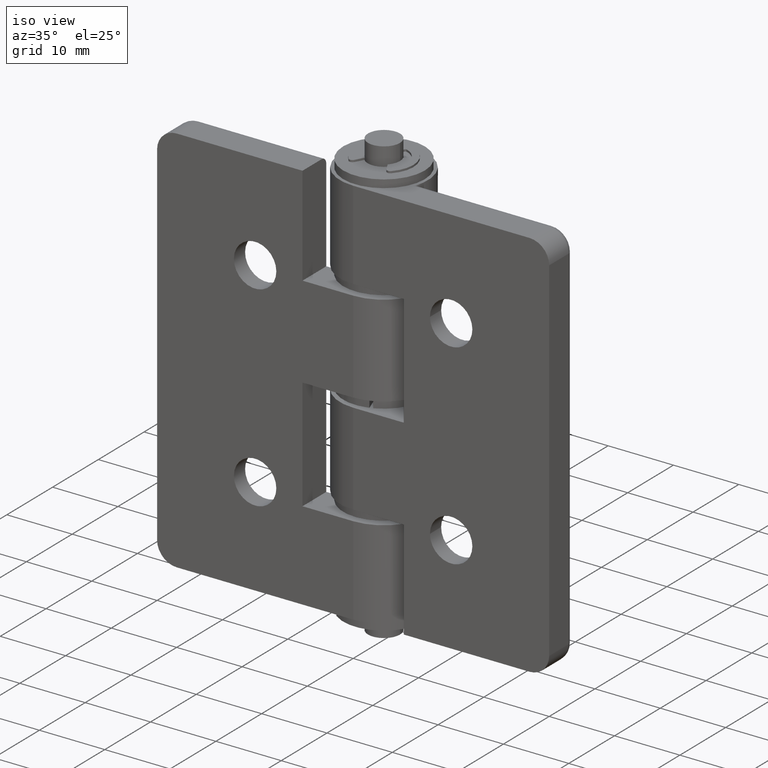
[diagram: clean part render]
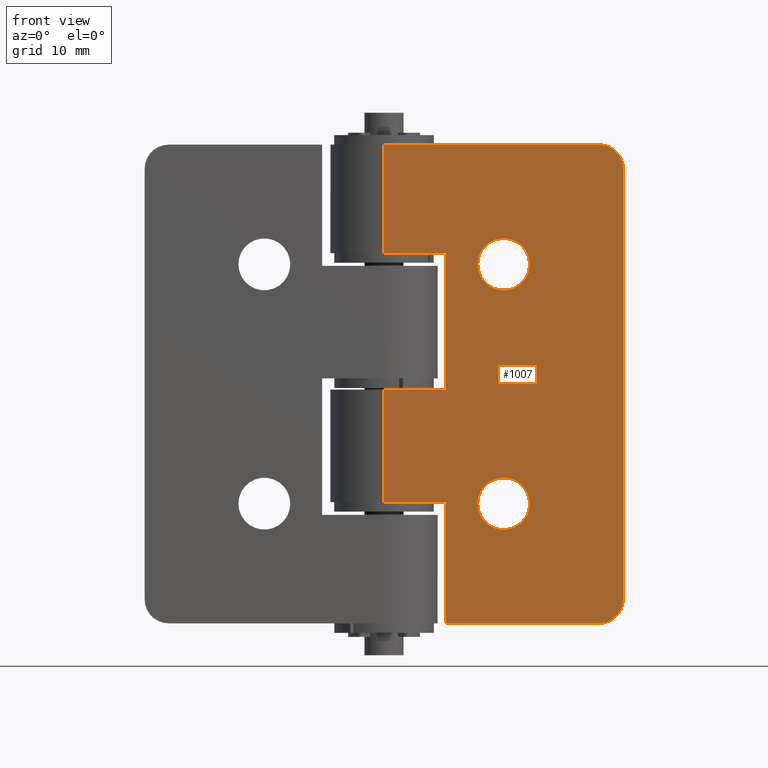
[diagram: tour spotlight — one face highlighted and labeled with its STEP entity id]
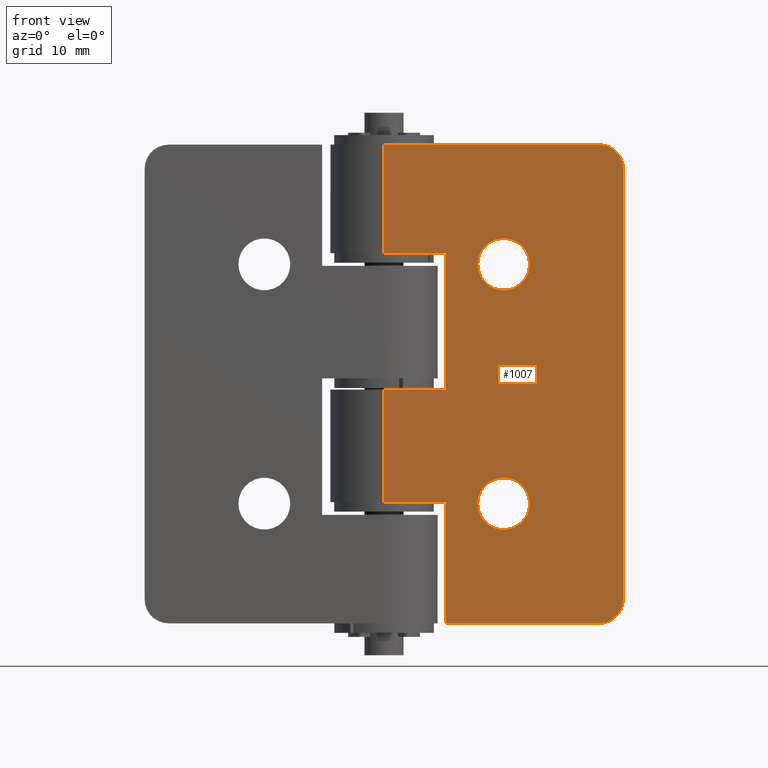
[diagram: tour spotlight — one face highlighted and labeled with its STEP entity id]
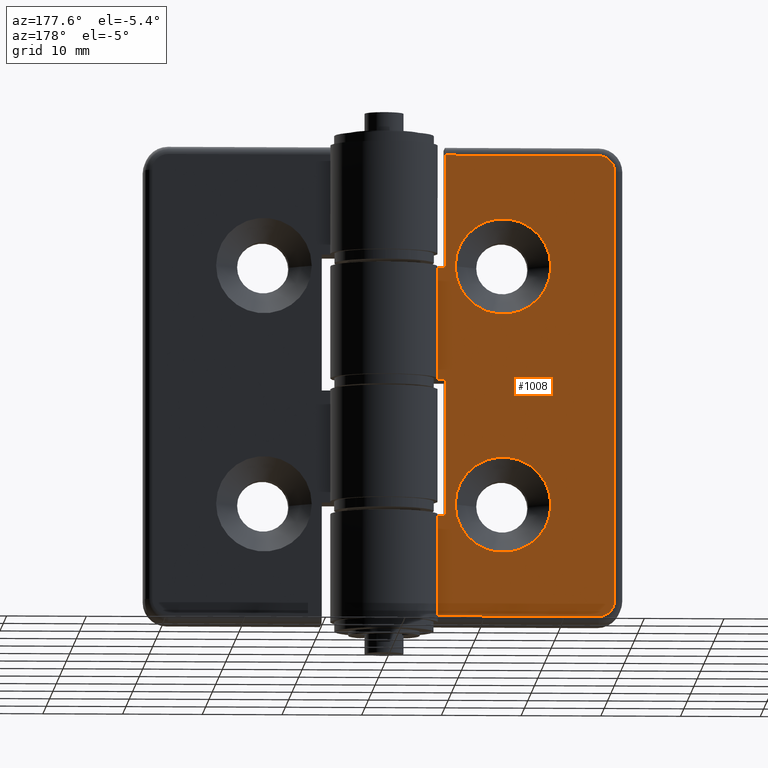
[diagram: tour spotlight — one face highlighted and labeled with its STEP entity id]
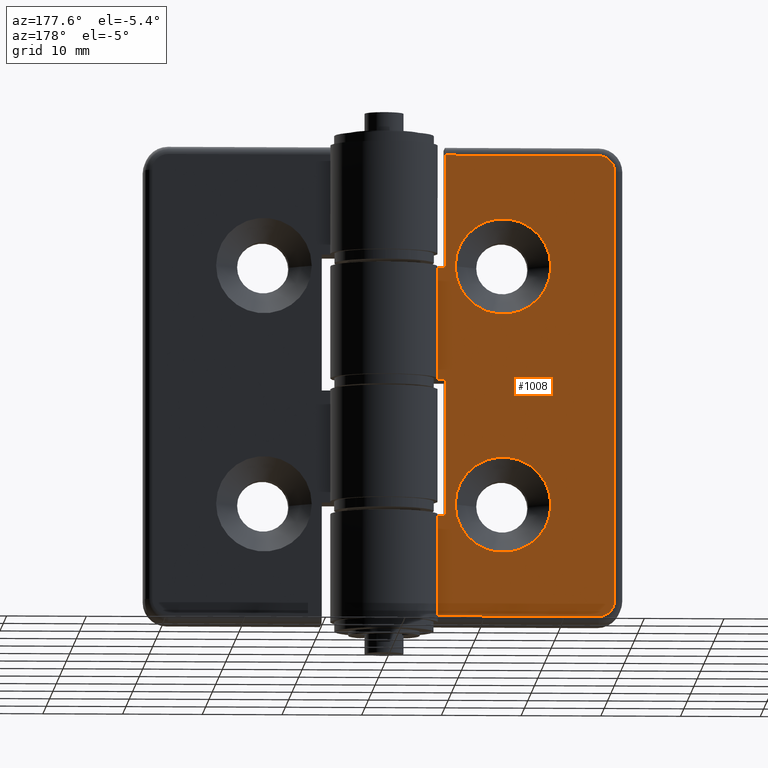
[diagram: tour spotlight — one face highlighted and labeled with its STEP entity id]
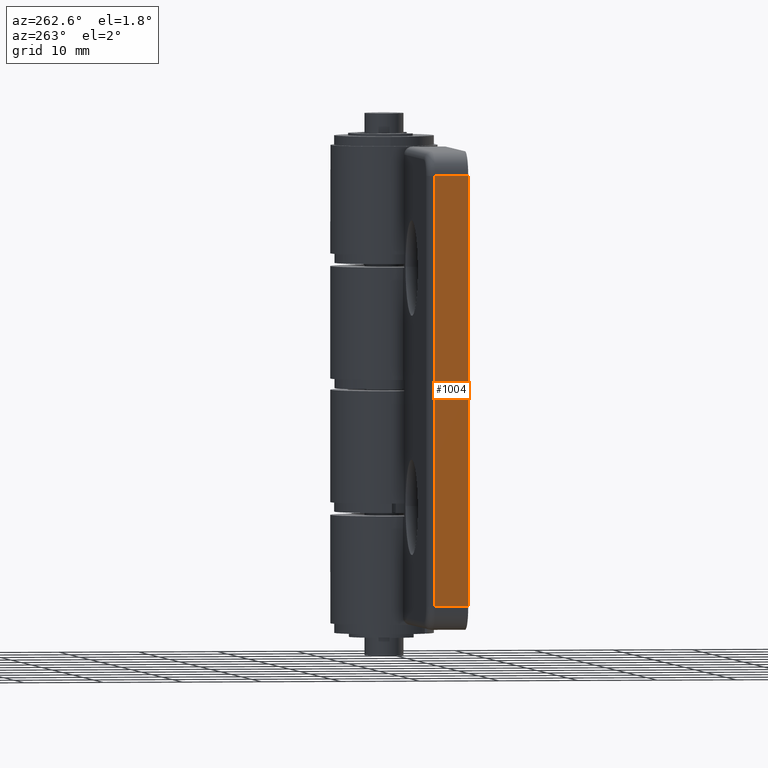
[diagram: tour spotlight — one face highlighted and labeled with its STEP entity id]
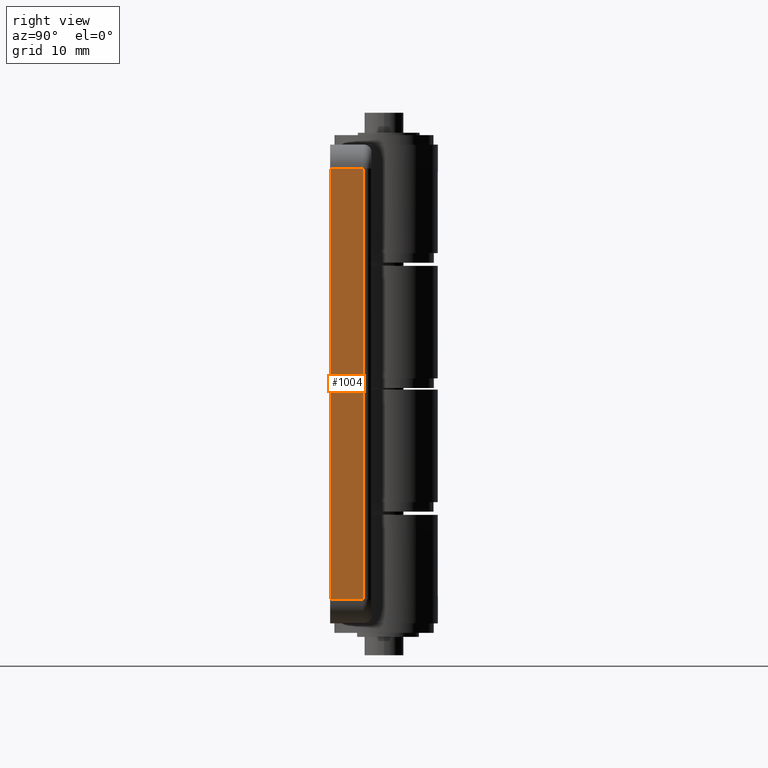
[diagram: tour spotlight — one face highlighted and labeled with its STEP entity id]
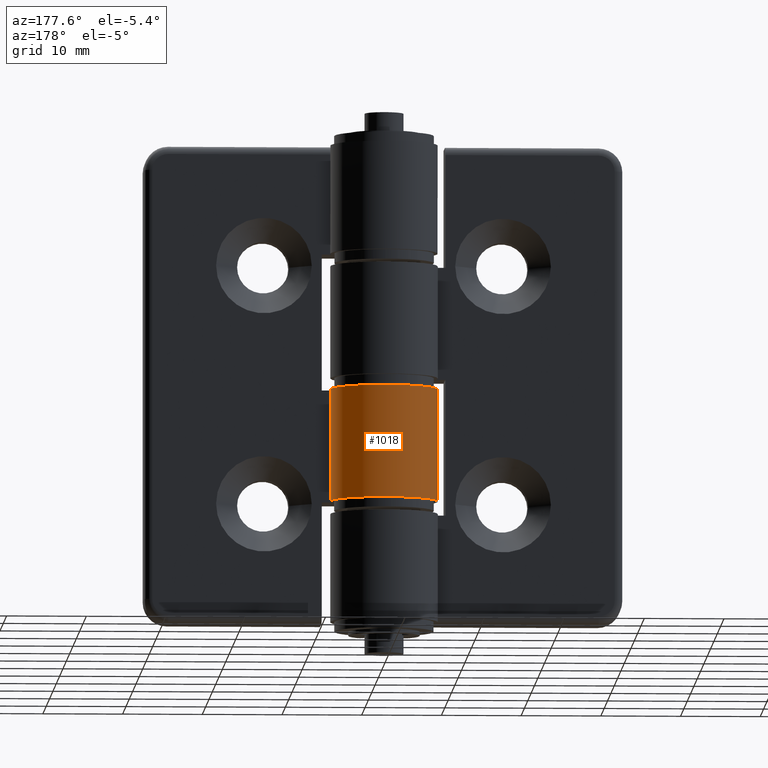
[diagram: tour spotlight — one face highlighted and labeled with its STEP entity id]
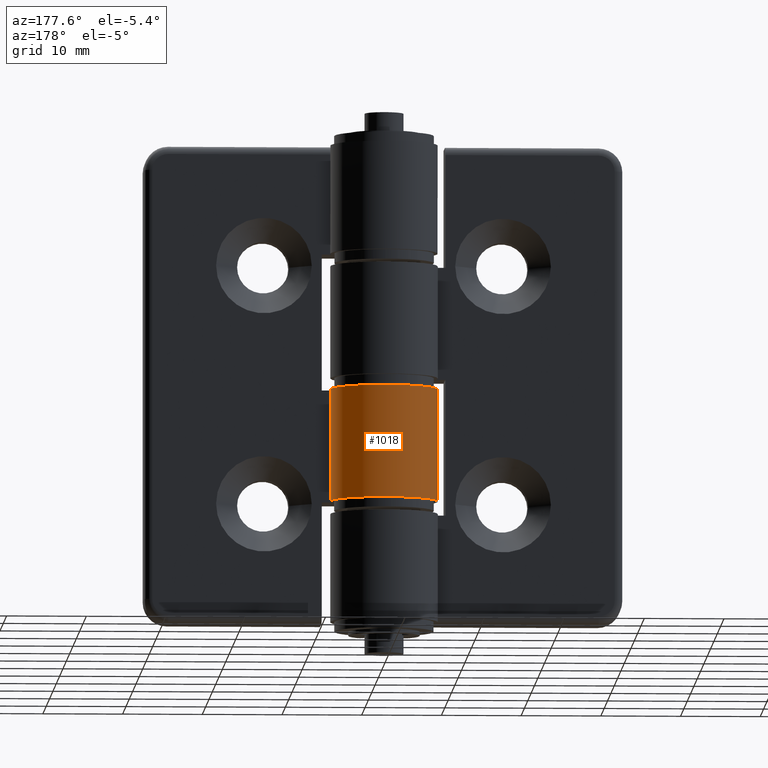
[diagram: tour spotlight — one face highlighted and labeled with its STEP entity id]
A machine part: a face-by-face anatomy tour. The part has 129 B-rep faces; the first image is the clean iso view, then the 8 largest visible faces are spotlighted one at a time (largest first), each with its STEP entity span.

Face 1 — front view, entity #1007. In plain terms, the highlighted planar face has unit normal (0, -1, 0).
Definition (entity closure, byte-faithful):
#74=FACE_BOUND('',#194,.T.);
#75=FACE_BOUND('',#195,.T.);
#96=PLANE('',#1086);
#132=FACE_OUTER_BOUND('',#193,.T.);
#193=EDGE_LOOP('',(#743,#744,#745,#746,#747,#748,#749,#750,#751,#752,#753,
#754));
#194=EDGE_LOOP('',(#755));
#195=EDGE_LOOP('',(#756));
#268=LINE('',#1592,#341);
#272=LINE('',#1599,#345);
#275=LINE('',#1607,#348);
#277=LINE('',#1615,#350);
#278=LINE('',#1620,#351);
#279=LINE('',#1622,#352);
#280=LINE('',#1624,#353);
#281=LINE('',#1626,#354);
#282=LINE('',#1628,#355);
#283=LINE('',#1629,#356);
#341=VECTOR('',#1237,15.2);
#345=VECTOR('',#1243,19.25);
#348=VECTOR('',#1252,54.);
#350=VECTOR('',#1262,27.);
#351=VECTOR('',#1267,13.6);
#352=VECTOR('',#1268,7.75000000000001);
#353=VECTOR('',#1269,17.1);
#354=VECTOR('',#1270,7.75000000000001);
#355=VECTOR('',#1271,14.1);
#356=VECTOR('',#1272,7.75);
#416=CIRCLE('',#1079,3.);
#417=CIRCLE('',#1082,3.);
#420=CIRCLE('',#1087,3.25);
#421=CIRCLE('',#1088,3.25);
#480=VERTEX_POINT('',#1589);
#481=VERTEX_POINT('',#1591);
#483=VERTEX_POINT('',#1597);
#484=VERTEX_POINT('',#1601);
#485=VERTEX_POINT('',#1605);
#486=VERTEX_POINT('',#1609);
#487=VERTEX_POINT('',#1613);
#489=VERTEX_POINT('',#1619);
#490=VERTEX_POINT('',#1621);
#491=VERTEX_POINT('',#1623);
#492=VERTEX_POINT('',#1625);
#493=VERTEX_POINT('',#1627);
#494=VERTEX_POINT('',#1630);
#495=VERTEX_POINT('',#1632);
#579=EDGE_CURVE('',#481,#480,#268,.T.);
#583=EDGE_CURVE('',#480,#483,#272,.T.);
#585=EDGE_CURVE('',#484,#483,#416,.T.);
#587=EDGE_CURVE('',#484,#485,#275,.T.);
#589=EDGE_CURVE('',#486,#485,#417,.T.);
#591=EDGE_CURVE('',#487,#486,#277,.T.);
#593=EDGE_CURVE('',#489,#487,#278,.T.);
#594=EDGE_CURVE('',#489,#490,#279,.T.);
#595=EDGE_CURVE('',#490,#491,#280,.T.);
#596=EDGE_CURVE('',#491,#492,#281,.T.);
#597=EDGE_CURVE('',#493,#492,#282,.T.);
#598=EDGE_CURVE('',#493,#481,#283,.T.);
#599=EDGE_CURVE('',#494,#494,#420,.T.);
#600=EDGE_CURVE('',#495,#495,#421,.T.);
#743=ORIENTED_EDGE('',*,*,#585,.F.);
#744=ORIENTED_EDGE('',*,*,#587,.T.);
#745=ORIENTED_EDGE('',*,*,#589,.F.);
#746=ORIENTED_EDGE('',*,*,#591,.F.);
#747=ORIENTED_EDGE('',*,*,#593,.F.);
#748=ORIENTED_EDGE('',*,*,#594,.T.);
#749=ORIENTED_EDGE('',*,*,#595,.T.);
#750=ORIENTED_EDGE('',*,*,#596,.T.);
#751=ORIENTED_EDGE('',*,*,#597,.F.);
#752=ORIENTED_EDGE('',*,*,#598,.T.);
#753=ORIENTED_EDGE('',*,*,#579,.T.);
#754=ORIENTED_EDGE('',*,*,#583,.T.);
#755=ORIENTED_EDGE('',*,*,#599,.T.);
#756=ORIENTED_EDGE('',*,*,#600,.T.);
#1007=ADVANCED_FACE('',(#132,#74,#75),#96,.T.);
#1079=AXIS2_PLACEMENT_3D('',#1603,#1247,#1248);
#1082=AXIS2_PLACEMENT_3D('',#1611,#1256,#1257);
#1086=AXIS2_PLACEMENT_3D('',#1618,#1265,#1266);
#1087=AXIS2_PLACEMENT_3D('',#1631,#1273,#1274);
#1088=AXIS2_PLACEMENT_3D('',#1633,#1275,#1276);
#1237=DIRECTION('',(2.92163953848725E-16,3.57797650907077E-32,1.));
#1243=DIRECTION('',(-1.,-1.22464679914735E-16,0.));
#1247=DIRECTION('center_axis',(-1.22464679914735E-16,1.,0.));
#1248=DIRECTION('ref_axis',(-0.707106781186547,0.,0.707106781186548));
#1252=DIRECTION('',(0.,0.,-1.));
#1256=DIRECTION('center_axis',(-1.22464679914735E-16,1.,0.));
#1257=DIRECTION('ref_axis',(-0.707106781186548,0.,-0.707106781186547));
#1262=DIRECTION('',(-1.,-1.22464679914735E-16,0.));
#1265=DIRECTION('center_axis',(1.22464679914735E-16,-1.,0.));
#1266=DIRECTION('ref_axis',(-1.,-1.22464679914735E-16,0.));
#1267=DIRECTION('',(0.,0.,-1.));
#1268=DIRECTION('',(-1.,-1.22464679914735E-16,0.));
#1269=DIRECTION('',(2.59701292309978E-16,3.18042356361846E-32,1.));
#1270=DIRECTION('',(1.,1.22464679914735E-16,0.));
#1271=DIRECTION('',(0.,0.,-1.));
#1272=DIRECTION('',(-1.,-1.22464679914735E-16,1.53134210293125E-16));
#1273=DIRECTION('center_axis',(-1.22464679914735E-16,1.,0.));
#1274=DIRECTION('ref_axis',(1.,2.22044604925031E-16,3.79071397121365E-16));
#1275=DIRECTION('center_axis',(-1.22464679914735E-16,1.,0.));
#1276=DIRECTION('ref_axis',(1.,2.22044604925031E-16,3.79071397121365E-16));
#1589=CARTESIAN_POINT('',(-7.75,-1.11022302462516E-15,2.06052571237087E-15));
#1591=CARTESIAN_POINT('',(-7.75,-1.11022302462516E-15,-15.2));
#1592=CARTESIAN_POINT('',(-7.75,-1.11022302462516E-15,-7.6));
#1597=CARTESIAN_POINT('',(-27.,-3.30654635769785E-15,0.));
#1599=CARTESIAN_POINT('',(0.,0.,0.));
#1601=CARTESIAN_POINT('',(-30.,-3.67394039744206E-15,-3.));
#1603=CARTESIAN_POINT('Origin',(-27.,0.,-3.));
#1605=CARTESIAN_POINT('',(-30.,-3.67394039744206E-15,-57.));
#1607=CARTESIAN_POINT('',(-30.,-3.67394039744206E-15,0.));
#1609=CARTESIAN_POINT('',(-27.,-3.30654635769785E-15,-60.));
#1611=CARTESIAN_POINT('Origin',(-27.,0.,-57.));
#1613=CARTESIAN_POINT('',(0.,0.,-60.));
#1615=CARTESIAN_POINT('',(0.,0.,-60.));
#1618=CARTESIAN_POINT('Origin',(0.,0.,0.));
#1619=CARTESIAN_POINT('',(2.46519032881566E-31,0.,-46.4));
#1620=CARTESIAN_POINT('',(2.46519032881566E-31,0.,0.));
#1621=CARTESIAN_POINT('',(-7.75000000000001,-1.11022302462516E-15,-46.4));
#1622=CARTESIAN_POINT('',(3.375,5.55111512312578E-16,-46.4));
#1623=CARTESIAN_POINT('',(-7.75000000000001,-1.11022302462516E-15,-29.3));
#1624=CARTESIAN_POINT('',(-7.75000000000001,-1.11022302462516E-15,-23.2));
#1625=CARTESIAN_POINT('',(2.46519032881566E-31,0.,-29.3));
#1626=CARTESIAN_POINT('',(-3.875,-5.55111512312578E-16,-29.3));
#1627=CARTESIAN_POINT('',(2.46519032881566E-31,0.,-15.2));
#1628=CARTESIAN_POINT('',(2.46519032881566E-31,0.,0.));
#1629=CARTESIAN_POINT('',(3.375,5.55111512312578E-16,-15.2));
#1630=CARTESIAN_POINT('',(-18.25,-7.21644966006352E-16,-15.));
#1631=CARTESIAN_POINT('Origin',(-15.,0.,-15.));
#1632=CARTESIAN_POINT('',(-18.25,-7.21644966006352E-16,-45.));
#1633=CARTESIAN_POINT('Origin',(-15.,0.,-45.));

Face 2 — front view, entity #1007. In plain terms, the highlighted planar face has unit normal (-0, -1, 0).
Definition (entity closure, byte-faithful):
#74=FACE_BOUND('',#194,.T.);
#75=FACE_BOUND('',#195,.T.);
#96=PLANE('',#1086);
#132=FACE_OUTER_BOUND('',#193,.T.);
#193=EDGE_LOOP('',(#743,#744,#745,#746,#747,#748,#749,#750,#751,#752,#753,
#754));
#194=EDGE_LOOP('',(#755));
#195=EDGE_LOOP('',(#756));
#268=LINE('',#1592,#341);
#272=LINE('',#1599,#345);
#275=LINE('',#1607,#348);
#277=LINE('',#1615,#350);
#278=LINE('',#1620,#351);
#279=LINE('',#1622,#352);
#280=LINE('',#1624,#353);
#281=LINE('',#1626,#354);
#282=LINE('',#1628,#355);
#283=LINE('',#1629,#356);
#341=VECTOR('',#1237,15.2);
#345=VECTOR('',#1243,19.25);
#348=VECTOR('',#1252,54.);
#350=VECTOR('',#1262,27.);
#351=VECTOR('',#1267,13.6);
#352=VECTOR('',#1268,7.75000000000001);
#353=VECTOR('',#1269,17.1);
#354=VECTOR('',#1270,7.75000000000001);
#355=VECTOR('',#1271,14.1);
#356=VECTOR('',#1272,7.75);
#416=CIRCLE('',#1079,3.);
#417=CIRCLE('',#1082,3.);
#420=CIRCLE('',#1087,3.25);
#421=CIRCLE('',#1088,3.25);
#480=VERTEX_POINT('',#1589);
#481=VERTEX_POINT('',#1591);
#483=VERTEX_POINT('',#1597);
#484=VERTEX_POINT('',#1601);
#485=VERTEX_POINT('',#1605);
#486=VERTEX_POINT('',#1609);
#487=VERTEX_POINT('',#1613);
#489=VERTEX_POINT('',#1619);
#490=VERTEX_POINT('',#1621);
#491=VERTEX_POINT('',#1623);
#492=VERTEX_POINT('',#1625);
#493=VERTEX_POINT('',#1627);
#494=VERTEX_POINT('',#1630);
#495=VERTEX_POINT('',#1632);
#579=EDGE_CURVE('',#481,#480,#268,.T.);
#583=EDGE_CURVE('',#480,#483,#272,.T.);
#585=EDGE_CURVE('',#484,#483,#416,.T.);
#587=EDGE_CURVE('',#484,#485,#275,.T.);
#589=EDGE_CURVE('',#486,#485,#417,.T.);
#591=EDGE_CURVE('',#487,#486,#277,.T.);
#593=EDGE_CURVE('',#489,#487,#278,.T.);
#594=EDGE_CURVE('',#489,#490,#279,.T.);
#595=EDGE_CURVE('',#490,#491,#280,.T.);
#596=EDGE_CURVE('',#491,#492,#281,.T.);
#597=EDGE_CURVE('',#493,#492,#282,.T.);
#598=EDGE_CURVE('',#493,#481,#283,.T.);
#599=EDGE_CURVE('',#494,#494,#420,.T.);
#600=EDGE_CURVE('',#495,#495,#421,.T.);
#743=ORIENTED_EDGE('',*,*,#585,.F.);
#744=ORIENTED_EDGE('',*,*,#587,.T.);
#745=ORIENTED_EDGE('',*,*,#589,.F.);
#746=ORIENTED_EDGE('',*,*,#591,.F.);
#747=ORIENTED_EDGE('',*,*,#593,.F.);
#748=ORIENTED_EDGE('',*,*,#594,.T.);
#749=ORIENTED_EDGE('',*,*,#595,.T.);
#750=ORIENTED_EDGE('',*,*,#596,.T.);
#751=ORIENTED_EDGE('',*,*,#597,.F.);
#752=ORIENTED_EDGE('',*,*,#598,.T.);
#753=ORIENTED_EDGE('',*,*,#579,.T.);
#754=ORIENTED_EDGE('',*,*,#583,.T.);
#755=ORIENTED_EDGE('',*,*,#599,.T.);
#756=ORIENTED_EDGE('',*,*,#600,.T.);
#1007=ADVANCED_FACE('',(#132,#74,#75),#96,.T.);
#1079=AXIS2_PLACEMENT_3D('',#1603,#1247,#1248);
#1082=AXIS2_PLACEMENT_3D('',#1611,#1256,#1257);
#1086=AXIS2_PLACEMENT_3D('',#1618,#1265,#1266);
#1087=AXIS2_PLACEMENT_3D('',#1631,#1273,#1274);
#1088=AXIS2_PLACEMENT_3D('',#1633,#1275,#1276);
#1237=DIRECTION('',(2.92163953848725E-16,3.57797650907077E-32,1.));
#1243=DIRECTION('',(-1.,-1.22464679914735E-16,0.));
#1247=DIRECTION('center_axis',(-1.22464679914735E-16,1.,0.));
#1248=DIRECTION('ref_axis',(-0.707106781186547,0.,0.707106781186548));
#1252=DIRECTION('',(0.,0.,-1.));
#1256=DIRECTION('center_axis',(-1.22464679914735E-16,1.,0.));
#1257=DIRECTION('ref_axis',(-0.707106781186548,0.,-0.707106781186547));
#1262=DIRECTION('',(-1.,-1.22464679914735E-16,0.));
#1265=DIRECTION('center_axis',(1.22464679914735E-16,-1.,0.));
#1266=DIRECTION('ref_axis',(-1.,-1.22464679914735E-16,0.));
#1267=DIRECTION('',(0.,0.,-1.));
#1268=DIRECTION('',(-1.,-1.22464679914735E-16,0.));
#1269=DIRECTION('',(2.59701292309978E-16,3.18042356361846E-32,1.));
#1270=DIRECTION('',(1.,1.22464679914735E-16,0.));
#1271=DIRECTION('',(0.,0.,-1.));
#1272=DIRECTION('',(-1.,-1.22464679914735E-16,1.53134210293125E-16));
#1273=DIRECTION('center_axis',(-1.22464679914735E-16,1.,0.));
#1274=DIRECTION('ref_axis',(1.,2.22044604925031E-16,3.79071397121365E-16));
#1275=DIRECTION('center_axis',(-1.22464679914735E-16,1.,0.));
#1276=DIRECTION('ref_axis',(1.,2.22044604925031E-16,3.79071397121365E-16));
#1589=CARTESIAN_POINT('',(-7.75,-1.11022302462516E-15,2.06052571237087E-15));
#1591=CARTESIAN_POINT('',(-7.75,-1.11022302462516E-15,-15.2));
#1592=CARTESIAN_POINT('',(-7.75,-1.11022302462516E-15,-7.6));
#1597=CARTESIAN_POINT('',(-27.,-3.30654635769785E-15,0.));
#1599=CARTESIAN_POINT('',(0.,0.,0.));
#1601=CARTESIAN_POINT('',(-30.,-3.67394039744206E-15,-3.));
#1603=CARTESIAN_POINT('Origin',(-27.,0.,-3.));
#1605=CARTESIAN_POINT('',(-30.,-3.67394039744206E-15,-57.));
#1607=CARTESIAN_POINT('',(-30.,-3.67394039744206E-15,0.));
#1609=CARTESIAN_POINT('',(-27.,-3.30654635769785E-15,-60.));
#1611=CARTESIAN_POINT('Origin',(-27.,0.,-57.));
#1613=CARTESIAN_POINT('',(0.,0.,-60.));
#1615=CARTESIAN_POINT('',(0.,0.,-60.));
#1618=CARTESIAN_POINT('Origin',(0.,0.,0.));
#1619=CARTESIAN_POINT('',(2.46519032881566E-31,0.,-46.4));
#1620=CARTESIAN_POINT('',(2.46519032881566E-31,0.,0.));
#1621=CARTESIAN_POINT('',(-7.75000000000001,-1.11022302462516E-15,-46.4));
#1622=CARTESIAN_POINT('',(3.375,5.55111512312578E-16,-46.4));
#1623=CARTESIAN_POINT('',(-7.75000000000001,-1.11022302462516E-15,-29.3));
#1624=CARTESIAN_POINT('',(-7.75000000000001,-1.11022302462516E-15,-23.2));
#1625=CARTESIAN_POINT('',(2.46519032881566E-31,0.,-29.3));
#1626=CARTESIAN_POINT('',(-3.875,-5.55111512312578E-16,-29.3));
#1627=CARTESIAN_POINT('',(2.46519032881566E-31,0.,-15.2));
#1628=CARTESIAN_POINT('',(2.46519032881566E-31,0.,0.));
#1629=CARTESIAN_POINT('',(3.375,5.55111512312578E-16,-15.2));
#1630=CARTESIAN_POINT('',(-18.25,-7.21644966006352E-16,-15.));
#1631=CARTESIAN_POINT('Origin',(-15.,0.,-15.));
#1632=CARTESIAN_POINT('',(-18.25,-7.21644966006352E-16,-45.));
#1633=CARTESIAN_POINT('Origin',(-15.,0.,-45.));

Face 3 — auxiliary view, entity #1008. In plain terms, the highlighted planar face has unit normal (0, 1, 0).
Definition (entity closure, byte-faithful):
#76=FACE_BOUND('',#197,.T.);
#77=FACE_BOUND('',#198,.T.);
#97=PLANE('',#1089);
#133=FACE_OUTER_BOUND('',#196,.T.);
#196=EDGE_LOOP('',(#757,#758,#759,#760,#761,#762,#763,#764,#765,#766,#767,
#768));
#197=EDGE_LOOP('',(#769));
#198=EDGE_LOOP('',(#770));
#261=LINE('',#1551,#334);
#263=LINE('',#1574,#336);
#265=LINE('',#1586,#338);
#270=LINE('',#1595,#343);
#284=LINE('',#1636,#357);
#285=LINE('',#1638,#358);
#286=LINE('',#1640,#359);
#287=LINE('',#1642,#360);
#288=LINE('',#1644,#361);
#289=LINE('',#1645,#362);
#334=VECTOR('',#1204,20.4303729177373);
#336=VECTOR('',#1218,54.);
#338=VECTOR('',#1232,19.25);
#343=VECTOR('',#1239,14.2);
#357=VECTOR('',#1279,1.18037291773726);
#358=VECTOR('',#1280,14.1);
#359=VECTOR('',#1281,1.18037291773727);
#360=VECTOR('',#1282,17.1);
#361=VECTOR('',#1283,1.18037291773727);
#362=VECTOR('',#1284,12.6);
#409=CIRCLE('',#1066,2.);
#413=CIRCLE('',#1072,2.);
#422=CIRCLE('',#1090,6.);
#423=CIRCLE('',#1091,6.);
#469=VERTEX_POINT('',#1548);
#470=VERTEX_POINT('',#1550);
#473=VERTEX_POINT('',#1566);
#475=VERTEX_POINT('',#1572);
#477=VERTEX_POINT('',#1578);
#479=VERTEX_POINT('',#1584);
#482=VERTEX_POINT('',#1593);
#496=VERTEX_POINT('',#1635);
#497=VERTEX_POINT('',#1637);
#498=VERTEX_POINT('',#1639);
#499=VERTEX_POINT('',#1641);
#500=VERTEX_POINT('',#1643);
#501=VERTEX_POINT('',#1646);
#502=VERTEX_POINT('',#1648);
#563=EDGE_CURVE('',#469,#470,#261,.T.);
#567=EDGE_CURVE('',#473,#469,#409,.T.);
#570=EDGE_CURVE('',#475,#473,#263,.T.);
#573=EDGE_CURVE('',#477,#475,#413,.T.);
#576=EDGE_CURVE('',#479,#477,#265,.T.);
#581=EDGE_CURVE('',#479,#482,#270,.T.);
#601=EDGE_CURVE('',#482,#496,#284,.T.);
#602=EDGE_CURVE('',#497,#496,#285,.T.);
#603=EDGE_CURVE('',#497,#498,#286,.T.);
#604=EDGE_CURVE('',#498,#499,#287,.T.);
#605=EDGE_CURVE('',#499,#500,#288,.T.);
#606=EDGE_CURVE('',#470,#500,#289,.T.);
#607=EDGE_CURVE('',#501,#501,#422,.T.);
#608=EDGE_CURVE('',#502,#502,#423,.T.);
#757=ORIENTED_EDGE('',*,*,#576,.F.);
#758=ORIENTED_EDGE('',*,*,#581,.T.);
#759=ORIENTED_EDGE('',*,*,#601,.T.);
#760=ORIENTED_EDGE('',*,*,#602,.F.);
#761=ORIENTED_EDGE('',*,*,#603,.T.);
#762=ORIENTED_EDGE('',*,*,#604,.T.);
#763=ORIENTED_EDGE('',*,*,#605,.T.);
#764=ORIENTED_EDGE('',*,*,#606,.F.);
#765=ORIENTED_EDGE('',*,*,#563,.F.);
#766=ORIENTED_EDGE('',*,*,#567,.F.);
#767=ORIENTED_EDGE('',*,*,#570,.F.);
#768=ORIENTED_EDGE('',*,*,#573,.F.);
#769=ORIENTED_EDGE('',*,*,#607,.T.);
#770=ORIENTED_EDGE('',*,*,#608,.T.);
#1008=ADVANCED_FACE('',(#133,#76,#77),#97,.T.);
#1066=AXIS2_PLACEMENT_3D('',#1568,#1210,#1211);
#1072=AXIS2_PLACEMENT_3D('',#1580,#1224,#1225);
#1089=AXIS2_PLACEMENT_3D('',#1634,#1277,#1278);
#1090=AXIS2_PLACEMENT_3D('',#1647,#1285,#1286);
#1091=AXIS2_PLACEMENT_3D('',#1649,#1287,#1288);
#1204=DIRECTION('',(1.,2.22044604925031E-16,0.));
#1210=DIRECTION('center_axis',(2.22044604925031E-16,-1.,0.));
#1211=DIRECTION('ref_axis',(-0.707106781186548,-1.57009245868378E-16,-0.707106781186547));
#1218=DIRECTION('',(0.,0.,-1.));
#1224=DIRECTION('center_axis',(2.22044604925031E-16,-1.,0.));
#1225=DIRECTION('ref_axis',(-0.707106781186548,-1.57009245868378E-16,0.707106781186548));
#1232=DIRECTION('',(-1.,-2.22044604925031E-16,0.));
#1239=DIRECTION('',(-2.92163953848725E-16,-6.48734297056753E-32,-1.));
#1277=DIRECTION('center_axis',(-2.22044604925031E-16,1.,0.));
#1278=DIRECTION('ref_axis',(1.,1.77635683940025E-16,0.));
#1279=DIRECTION('',(1.,2.22044604925031E-16,-1.53134210293125E-16));
#1280=DIRECTION('',(0.,0.,1.));
#1281=DIRECTION('',(-1.,-2.22044604925031E-16,0.));
#1282=DIRECTION('',(-2.59701292309978E-16,-5.76652708494892E-32,-1.));
#1283=DIRECTION('',(1.,2.22044604925031E-16,0.));
#1284=DIRECTION('',(0.,0.,1.));
#1285=DIRECTION('center_axis',(2.22044604925031E-16,-1.,0.));
#1286=DIRECTION('ref_axis',(1.,2.22044604925031E-16,3.79071397121365E-16));
#1287=DIRECTION('center_axis',(2.22044604925031E-16,-1.,0.));
#1288=DIRECTION('ref_axis',(1.,2.22044604925031E-16,3.79071397121365E-16));
#1548=CARTESIAN_POINT('',(-27.,5.2,-59.));
#1550=CARTESIAN_POINT('',(-6.56962708226274,5.2,-59.));
#1551=CARTESIAN_POINT('',(-22.5,5.2,-59.));
#1566=CARTESIAN_POINT('',(-29.,5.2,-57.));
#1568=CARTESIAN_POINT('Origin',(-27.,5.2,-57.));
#1572=CARTESIAN_POINT('',(-29.,5.2,-3.));
#1574=CARTESIAN_POINT('',(-29.,5.2,0.));
#1578=CARTESIAN_POINT('',(-27.,5.2,-1.));
#1580=CARTESIAN_POINT('Origin',(-27.,5.2,-3.));
#1584=CARTESIAN_POINT('',(-7.75,5.2,-1.));
#1586=CARTESIAN_POINT('',(-15.,5.2,-1.));
#1593=CARTESIAN_POINT('',(-7.75,5.2,-15.2));
#1595=CARTESIAN_POINT('',(-7.75,5.2,-7.6));
#1634=CARTESIAN_POINT('Origin',(-30.,5.2,0.));
#1635=CARTESIAN_POINT('',(-6.56962708226274,5.2,-15.2));
#1636=CARTESIAN_POINT('',(-11.625,5.2,-15.2));
#1637=CARTESIAN_POINT('',(-6.56962708226274,5.2,-29.3));
#1638=CARTESIAN_POINT('',(-6.56962708226274,5.2,0.));
#1639=CARTESIAN_POINT('',(-7.75000000000001,5.2,-29.3));
#1640=CARTESIAN_POINT('',(-18.875,5.2,-29.3));
#1641=CARTESIAN_POINT('',(-7.75000000000001,5.2,-46.4));
#1642=CARTESIAN_POINT('',(-7.75000000000001,5.2,-23.2));
#1643=CARTESIAN_POINT('',(-6.56962708226274,5.2,-46.4));
#1644=CARTESIAN_POINT('',(-11.625,5.2,-46.4));
#1645=CARTESIAN_POINT('',(-6.56962708226274,5.2,0.));
#1646=CARTESIAN_POINT('',(-9.00000000000002,5.2,-15.));
#1647=CARTESIAN_POINT('Origin',(-15.,5.2,-15.));
#1648=CARTESIAN_POINT('',(-9.00000000000001,5.2,-45.));
#1649=CARTESIAN_POINT('Origin',(-15.,5.2,-45.));

Face 4 — auxiliary view, entity #1008. In plain terms, the highlighted planar face has unit normal (-0, 1, 0).
Definition (entity closure, byte-faithful):
#76=FACE_BOUND('',#197,.T.);
#77=FACE_BOUND('',#198,.T.);
#97=PLANE('',#1089);
#133=FACE_OUTER_BOUND('',#196,.T.);
#196=EDGE_LOOP('',(#757,#758,#759,#760,#761,#762,#763,#764,#765,#766,#767,
#768));
#197=EDGE_LOOP('',(#769));
#198=EDGE_LOOP('',(#770));
#261=LINE('',#1551,#334);
#263=LINE('',#1574,#336);
#265=LINE('',#1586,#338);
#270=LINE('',#1595,#343);
#284=LINE('',#1636,#357);
#285=LINE('',#1638,#358);
#286=LINE('',#1640,#359);
#287=LINE('',#1642,#360);
#288=LINE('',#1644,#361);
#289=LINE('',#1645,#362);
#334=VECTOR('',#1204,20.4303729177373);
#336=VECTOR('',#1218,54.);
#338=VECTOR('',#1232,19.25);
#343=VECTOR('',#1239,14.2);
#357=VECTOR('',#1279,1.18037291773726);
#358=VECTOR('',#1280,14.1);
#359=VECTOR('',#1281,1.18037291773727);
#360=VECTOR('',#1282,17.1);
#361=VECTOR('',#1283,1.18037291773727);
#362=VECTOR('',#1284,12.6);
#409=CIRCLE('',#1066,2.);
#413=CIRCLE('',#1072,2.);
#422=CIRCLE('',#1090,6.);
#423=CIRCLE('',#1091,6.);
#469=VERTEX_POINT('',#1548);
#470=VERTEX_POINT('',#1550);
#473=VERTEX_POINT('',#1566);
#475=VERTEX_POINT('',#1572);
#477=VERTEX_POINT('',#1578);
#479=VERTEX_POINT('',#1584);
#482=VERTEX_POINT('',#1593);
#496=VERTEX_POINT('',#1635);
#497=VERTEX_POINT('',#1637);
#498=VERTEX_POINT('',#1639);
#499=VERTEX_POINT('',#1641);
#500=VERTEX_POINT('',#1643);
#501=VERTEX_POINT('',#1646);
#502=VERTEX_POINT('',#1648);
#563=EDGE_CURVE('',#469,#470,#261,.T.);
#567=EDGE_CURVE('',#473,#469,#409,.T.);
#570=EDGE_CURVE('',#475,#473,#263,.T.);
#573=EDGE_CURVE('',#477,#475,#413,.T.);
#576=EDGE_CURVE('',#479,#477,#265,.T.);
#581=EDGE_CURVE('',#479,#482,#270,.T.);
#601=EDGE_CURVE('',#482,#496,#284,.T.);
#602=EDGE_CURVE('',#497,#496,#285,.T.);
#603=EDGE_CURVE('',#497,#498,#286,.T.);
#604=EDGE_CURVE('',#498,#499,#287,.T.);
#605=EDGE_CURVE('',#499,#500,#288,.T.);
#606=EDGE_CURVE('',#470,#500,#289,.T.);
#607=EDGE_CURVE('',#501,#501,#422,.T.);
#608=EDGE_CURVE('',#502,#502,#423,.T.);
#757=ORIENTED_EDGE('',*,*,#576,.F.);
#758=ORIENTED_EDGE('',*,*,#581,.T.);
#759=ORIENTED_EDGE('',*,*,#601,.T.);
#760=ORIENTED_EDGE('',*,*,#602,.F.);
#761=ORIENTED_EDGE('',*,*,#603,.T.);
#762=ORIENTED_EDGE('',*,*,#604,.T.);
#763=ORIENTED_EDGE('',*,*,#605,.T.);
#764=ORIENTED_EDGE('',*,*,#606,.F.);
#765=ORIENTED_EDGE('',*,*,#563,.F.);
#766=ORIENTED_EDGE('',*,*,#567,.F.);
#767=ORIENTED_EDGE('',*,*,#570,.F.);
#768=ORIENTED_EDGE('',*,*,#573,.F.);
#769=ORIENTED_EDGE('',*,*,#607,.T.);
#770=ORIENTED_EDGE('',*,*,#608,.T.);
#1008=ADVANCED_FACE('',(#133,#76,#77),#97,.T.);
#1066=AXIS2_PLACEMENT_3D('',#1568,#1210,#1211);
#1072=AXIS2_PLACEMENT_3D('',#1580,#1224,#1225);
#1089=AXIS2_PLACEMENT_3D('',#1634,#1277,#1278);
#1090=AXIS2_PLACEMENT_3D('',#1647,#1285,#1286);
#1091=AXIS2_PLACEMENT_3D('',#1649,#1287,#1288);
#1204=DIRECTION('',(1.,2.22044604925031E-16,0.));
#1210=DIRECTION('center_axis',(2.22044604925031E-16,-1.,0.));
#1211=DIRECTION('ref_axis',(-0.707106781186548,-1.57009245868378E-16,-0.707106781186547));
#1218=DIRECTION('',(0.,0.,-1.));
#1224=DIRECTION('center_axis',(2.22044604925031E-16,-1.,0.));
#1225=DIRECTION('ref_axis',(-0.707106781186548,-1.57009245868378E-16,0.707106781186548));
#1232=DIRECTION('',(-1.,-2.22044604925031E-16,0.));
#1239=DIRECTION('',(-2.92163953848725E-16,-6.48734297056753E-32,-1.));
#1277=DIRECTION('center_axis',(-2.22044604925031E-16,1.,0.));
#1278=DIRECTION('ref_axis',(1.,1.77635683940025E-16,0.));
#1279=DIRECTION('',(1.,2.22044604925031E-16,-1.53134210293125E-16));
#1280=DIRECTION('',(0.,0.,1.));
#1281=DIRECTION('',(-1.,-2.22044604925031E-16,0.));
#1282=DIRECTION('',(-2.59701292309978E-16,-5.76652708494892E-32,-1.));
#1283=DIRECTION('',(1.,2.22044604925031E-16,0.));
#1284=DIRECTION('',(0.,0.,1.));
#1285=DIRECTION('center_axis',(2.22044604925031E-16,-1.,0.));
#1286=DIRECTION('ref_axis',(1.,2.22044604925031E-16,3.79071397121365E-16));
#1287=DIRECTION('center_axis',(2.22044604925031E-16,-1.,0.));
#1288=DIRECTION('ref_axis',(1.,2.22044604925031E-16,3.79071397121365E-16));
#1548=CARTESIAN_POINT('',(-27.,5.2,-59.));
#1550=CARTESIAN_POINT('',(-6.56962708226274,5.2,-59.));
#1551=CARTESIAN_POINT('',(-22.5,5.2,-59.));
#1566=CARTESIAN_POINT('',(-29.,5.2,-57.));
#1568=CARTESIAN_POINT('Origin',(-27.,5.2,-57.));
#1572=CARTESIAN_POINT('',(-29.,5.2,-3.));
#1574=CARTESIAN_POINT('',(-29.,5.2,0.));
#1578=CARTESIAN_POINT('',(-27.,5.2,-1.));
#1580=CARTESIAN_POINT('Origin',(-27.,5.2,-3.));
#1584=CARTESIAN_POINT('',(-7.75,5.2,-1.));
#1586=CARTESIAN_POINT('',(-15.,5.2,-1.));
#1593=CARTESIAN_POINT('',(-7.75,5.2,-15.2));
#1595=CARTESIAN_POINT('',(-7.75,5.2,-7.6));
#1634=CARTESIAN_POINT('Origin',(-30.,5.2,0.));
#1635=CARTESIAN_POINT('',(-6.56962708226274,5.2,-15.2));
#1636=CARTESIAN_POINT('',(-11.625,5.2,-15.2));
#1637=CARTESIAN_POINT('',(-6.56962708226274,5.2,-29.3));
#1638=CARTESIAN_POINT('',(-6.56962708226274,5.2,0.));
#1639=CARTESIAN_POINT('',(-7.75000000000001,5.2,-29.3));
#1640=CARTESIAN_POINT('',(-18.875,5.2,-29.3));
#1641=CARTESIAN_POINT('',(-7.75000000000001,5.2,-46.4));
#1642=CARTESIAN_POINT('',(-7.75000000000001,5.2,-23.2));
#1643=CARTESIAN_POINT('',(-6.56962708226274,5.2,-46.4));
#1644=CARTESIAN_POINT('',(-11.625,5.2,-46.4));
#1645=CARTESIAN_POINT('',(-6.56962708226274,5.2,0.));
#1646=CARTESIAN_POINT('',(-9.00000000000002,5.2,-15.));
#1647=CARTESIAN_POINT('Origin',(-15.,5.2,-15.));
#1648=CARTESIAN_POINT('',(-9.00000000000001,5.2,-45.));
#1649=CARTESIAN_POINT('Origin',(-15.,5.2,-45.));

Face 5 — auxiliary view, entity #1004. In plain terms, the highlighted planar face has unit normal (-1, 0, 0).
Definition (entity closure, byte-faithful):
#94=PLANE('',#1080);
#129=FACE_OUTER_BOUND('',#189,.T.);
#189=EDGE_LOOP('',(#730,#731,#732,#733));
#264=LINE('',#1575,#337);
#273=LINE('',#1602,#346);
#274=LINE('',#1606,#347);
#275=LINE('',#1607,#348);
#337=VECTOR('',#1219,54.);
#346=VECTOR('',#1246,4.2);
#347=VECTOR('',#1251,4.2);
#348=VECTOR('',#1252,54.);
#472=VERTEX_POINT('',#1565);
#474=VERTEX_POINT('',#1571);
#484=VERTEX_POINT('',#1601);
#485=VERTEX_POINT('',#1605);
#571=EDGE_CURVE('',#472,#474,#264,.T.);
#584=EDGE_CURVE('',#474,#484,#273,.T.);
#586=EDGE_CURVE('',#485,#472,#274,.T.);
#587=EDGE_CURVE('',#484,#485,#275,.T.);
#730=ORIENTED_EDGE('',*,*,#571,.F.);
#731=ORIENTED_EDGE('',*,*,#586,.F.);
#732=ORIENTED_EDGE('',*,*,#587,.F.);
#733=ORIENTED_EDGE('',*,*,#584,.F.);
#1004=ADVANCED_FACE('',(#129),#94,.T.);
#1080=AXIS2_PLACEMENT_3D('',#1604,#1249,#1250);
#1219=DIRECTION('',(0.,0.,1.));
#1246=DIRECTION('',(0.,-1.,0.));
#1249=DIRECTION('center_axis',(-1.,0.,0.));
#1250=DIRECTION('ref_axis',(0.,1.,0.));
#1251=DIRECTION('',(0.,1.,0.));
#1252=DIRECTION('',(0.,0.,-1.));
#1565=CARTESIAN_POINT('',(-30.,4.2,-57.));
#1571=CARTESIAN_POINT('',(-30.,4.2,-3.));
#1575=CARTESIAN_POINT('',(-30.,4.2,0.));
#1601=CARTESIAN_POINT('',(-30.,-3.67394039744206E-15,-3.));
#1602=CARTESIAN_POINT('',(-30.,3.375,-3.));
#1604=CARTESIAN_POINT('Origin',(-30.,-3.67394039744206E-15,0.));
#1605=CARTESIAN_POINT('',(-30.,-3.67394039744206E-15,-57.));
#1606=CARTESIAN_POINT('',(-30.,1.3,-57.));
#1607=CARTESIAN_POINT('',(-30.,-3.67394039744206E-15,0.));

Face 6 — right view, entity #1004. In plain terms, the highlighted planar face has unit normal (1, 0, 0).
Definition (entity closure, byte-faithful):
#94=PLANE('',#1080);
#129=FACE_OUTER_BOUND('',#189,.T.);
#189=EDGE_LOOP('',(#730,#731,#732,#733));
#264=LINE('',#1575,#337);
#273=LINE('',#1602,#346);
#274=LINE('',#1606,#347);
#275=LINE('',#1607,#348);
#337=VECTOR('',#1219,54.);
#346=VECTOR('',#1246,4.2);
#347=VECTOR('',#1251,4.2);
#348=VECTOR('',#1252,54.);
#472=VERTEX_POINT('',#1565);
#474=VERTEX_POINT('',#1571);
#484=VERTEX_POINT('',#1601);
#485=VERTEX_POINT('',#1605);
#571=EDGE_CURVE('',#472,#474,#264,.T.);
#584=EDGE_CURVE('',#474,#484,#273,.T.);
#586=EDGE_CURVE('',#485,#472,#274,.T.);
#587=EDGE_CURVE('',#484,#485,#275,.T.);
#730=ORIENTED_EDGE('',*,*,#571,.F.);
#731=ORIENTED_EDGE('',*,*,#586,.F.);
#732=ORIENTED_EDGE('',*,*,#587,.F.);
#733=ORIENTED_EDGE('',*,*,#584,.F.);
#1004=ADVANCED_FACE('',(#129),#94,.T.);
#1080=AXIS2_PLACEMENT_3D('',#1604,#1249,#1250);
#1219=DIRECTION('',(0.,0.,1.));
#1246=DIRECTION('',(0.,-1.,0.));
#1249=DIRECTION('center_axis',(-1.,0.,0.));
#1250=DIRECTION('ref_axis',(0.,1.,0.));
#1251=DIRECTION('',(0.,1.,0.));
#1252=DIRECTION('',(0.,0.,-1.));
#1565=CARTESIAN_POINT('',(-30.,4.2,-57.));
#1571=CARTESIAN_POINT('',(-30.,4.2,-3.));
#1575=CARTESIAN_POINT('',(-30.,4.2,0.));
#1601=CARTESIAN_POINT('',(-30.,-3.67394039744206E-15,-3.));
#1602=CARTESIAN_POINT('',(-30.,3.375,-3.));
#1604=CARTESIAN_POINT('Origin',(-30.,-3.67394039744206E-15,0.));
#1605=CARTESIAN_POINT('',(-30.,-3.67394039744206E-15,-57.));
#1606=CARTESIAN_POINT('',(-30.,1.3,-57.));
#1607=CARTESIAN_POINT('',(-30.,-3.67394039744206E-15,0.));

Face 7 — auxiliary view, entity #1018. In plain terms, the highlighted cylindrical surface (partial cylindrical patch) has radius 6.75 mm, axis along (0, 0, -1).
Definition (entity closure, byte-faithful):
#143=FACE_OUTER_BOUND('',#215,.T.);
#215=EDGE_LOOP('',(#803,#804,#805,#806));
#282=LINE('',#1628,#355);
#285=LINE('',#1638,#358);
#355=VECTOR('',#1271,14.1);
#358=VECTOR('',#1280,14.1);
#426=CIRCLE('',#1099,6.75);
#430=CIRCLE('',#1105,6.75);
#492=VERTEX_POINT('',#1625);
#493=VERTEX_POINT('',#1627);
#496=VERTEX_POINT('',#1635);
#497=VERTEX_POINT('',#1637);
#597=EDGE_CURVE('',#493,#492,#282,.T.);
#602=EDGE_CURVE('',#497,#496,#285,.T.);
#611=EDGE_CURVE('',#496,#493,#426,.T.);
#616=EDGE_CURVE('',#492,#497,#430,.T.);
#803=ORIENTED_EDGE('',*,*,#611,.T.);
#804=ORIENTED_EDGE('',*,*,#597,.T.);
#805=ORIENTED_EDGE('',*,*,#616,.T.);
#806=ORIENTED_EDGE('',*,*,#602,.T.);
#975=CYLINDRICAL_SURFACE('',#1109,6.75);
#1018=ADVANCED_FACE('',(#143),#975,.T.);
#1099=AXIS2_PLACEMENT_3D('',#1659,#1303,#1304);
#1105=AXIS2_PLACEMENT_3D('',#1668,#1316,#1317);
#1109=AXIS2_PLACEMENT_3D('',#1674,#1325,#1326);
#1271=DIRECTION('',(0.,0.,-1.));
#1280=DIRECTION('',(0.,0.,1.));
#1303=DIRECTION('center_axis',(-1.53134210293125E-16,0.,-1.));
#1304=DIRECTION('ref_axis',(-1.,0.,0.));
#1316=DIRECTION('center_axis',(0.,0.,1.));
#1317=DIRECTION('ref_axis',(-1.,0.,0.));
#1325=DIRECTION('center_axis',(0.,0.,-1.));
#1326=DIRECTION('ref_axis',(-1.,0.,0.));
#1625=CARTESIAN_POINT('',(2.46519032881566E-31,0.,-29.3));
#1627=CARTESIAN_POINT('',(2.46519032881566E-31,0.,-15.2));
#1628=CARTESIAN_POINT('',(2.46519032881566E-31,0.,0.));
#1635=CARTESIAN_POINT('',(-6.56962708226274,5.2,-15.2));
#1637=CARTESIAN_POINT('',(-6.56962708226274,5.2,-29.3));
#1638=CARTESIAN_POINT('',(-6.56962708226274,5.2,0.));
#1659=CARTESIAN_POINT('Origin',(-2.22044604925031E-15,6.75,-15.2));
#1668=CARTESIAN_POINT('Origin',(-2.22044604925031E-15,6.75,-29.3));
#1674=CARTESIAN_POINT('Origin',(-2.22044604925031E-15,6.75,0.));

Face 8 — auxiliary view, entity #1018. In plain terms, the highlighted cylindrical surface (partial cylindrical patch) has radius 6.75 mm, axis along (0, 0, 1).
Definition (entity closure, byte-faithful):
#143=FACE_OUTER_BOUND('',#215,.T.);
#215=EDGE_LOOP('',(#803,#804,#805,#806));
#282=LINE('',#1628,#355);
#285=LINE('',#1638,#358);
#355=VECTOR('',#1271,14.1);
#358=VECTOR('',#1280,14.1);
#426=CIRCLE('',#1099,6.75);
#430=CIRCLE('',#1105,6.75);
#492=VERTEX_POINT('',#1625);
#493=VERTEX_POINT('',#1627);
#496=VERTEX_POINT('',#1635);
#497=VERTEX_POINT('',#1637);
#597=EDGE_CURVE('',#493,#492,#282,.T.);
#602=EDGE_CURVE('',#497,#496,#285,.T.);
#611=EDGE_CURVE('',#496,#493,#426,.T.);
#616=EDGE_CURVE('',#492,#497,#430,.T.);
#803=ORIENTED_EDGE('',*,*,#611,.T.);
#804=ORIENTED_EDGE('',*,*,#597,.T.);
#805=ORIENTED_EDGE('',*,*,#616,.T.);
#806=ORIENTED_EDGE('',*,*,#602,.T.);
#975=CYLINDRICAL_SURFACE('',#1109,6.75);
#1018=ADVANCED_FACE('',(#143),#975,.T.);
#1099=AXIS2_PLACEMENT_3D('',#1659,#1303,#1304);
#1105=AXIS2_PLACEMENT_3D('',#1668,#1316,#1317);
#1109=AXIS2_PLACEMENT_3D('',#1674,#1325,#1326);
#1271=DIRECTION('',(0.,0.,-1.));
#1280=DIRECTION('',(0.,0.,1.));
#1303=DIRECTION('center_axis',(-1.53134210293125E-16,0.,-1.));
#1304=DIRECTION('ref_axis',(-1.,0.,0.));
#1316=DIRECTION('center_axis',(0.,0.,1.));
#1317=DIRECTION('ref_axis',(-1.,0.,0.));
#1325=DIRECTION('center_axis',(0.,0.,-1.));
#1326=DIRECTION('ref_axis',(-1.,0.,0.));
#1625=CARTESIAN_POINT('',(2.46519032881566E-31,0.,-29.3));
#1627=CARTESIAN_POINT('',(2.46519032881566E-31,0.,-15.2));
#1628=CARTESIAN_POINT('',(2.46519032881566E-31,0.,0.));
#1635=CARTESIAN_POINT('',(-6.56962708226274,5.2,-15.2));
#1637=CARTESIAN_POINT('',(-6.56962708226274,5.2,-29.3));
#1638=CARTESIAN_POINT('',(-6.56962708226274,5.2,0.));
#1659=CARTESIAN_POINT('Origin',(-2.22044604925031E-15,6.75,-15.2));
#1668=CARTESIAN_POINT('Origin',(-2.22044604925031E-15,6.75,-29.3));
#1674=CARTESIAN_POINT('Origin',(-2.22044604925031E-15,6.75,0.));